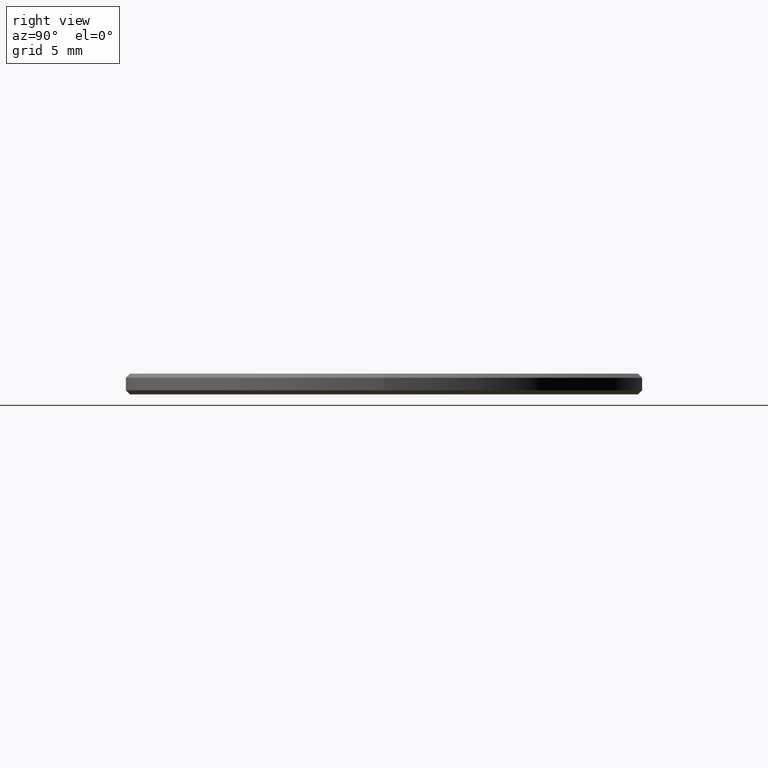
[diagram: clean part render]
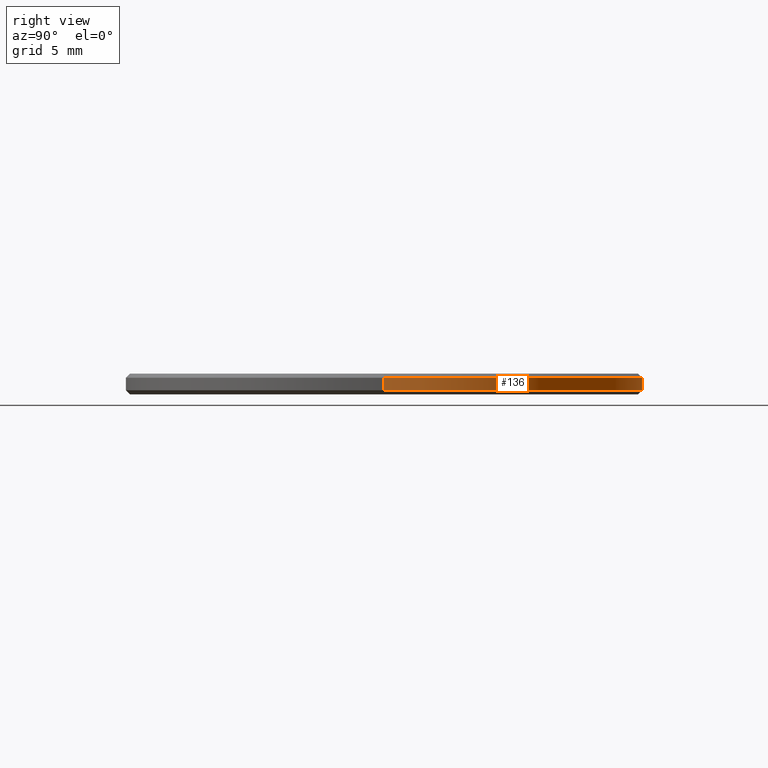
[diagram: same view with one face highlighted and labeled with its STEP entity id]
A machine part, right view. The second image highlights one B-rep face of the part: STEP entity #136.
In plain terms, the highlighted cylindrical surface (partial cylindrical patch) has radius 12.5 mm, axis along (-0, -0, -1).
Its self-contained STEP definition (entity closure, byte-faithful):
#4 = VERTEX_POINT ( 'NONE', #64 ) ;
#5 = VERTEX_POINT ( 'NONE', #122 ) ;
#11 = VERTEX_POINT ( 'NONE', #81 ) ;
#18 = DIRECTION ( 'NONE',  ( -0.000000000000000000, -0.000000000000000000, -1.000000000000000000 ) ) ;
#19 = DIRECTION ( 'NONE',  ( 0.000000000000000000, 0.000000000000000000, -1.000000000000000000 ) ) ;
#22 = CIRCLE ( 'NONE', #104, 12.50000000000000000 ) ;
#35 = LINE ( 'NONE', #182, #192 ) ;
#41 = ORIENTED_EDGE ( 'NONE', *, *, #204, .T. ) ;
#54 = DIRECTION ( 'NONE',  ( -0.000000000000000000, -0.000000000000000000, -1.000000000000000000 ) ) ;
#64 = CARTESIAN_POINT ( 'NONE',  ( 12.50000000000000000, 1.530808498934191521E-15, 0.1999999999999987899 ) ) ;
#81 = CARTESIAN_POINT ( 'NONE',  ( 12.50000000000000000, 1.530808498934191521E-15, 0.8000000000000029310 ) ) ;
#82 = DIRECTION ( 'NONE',  ( -0.000000000000000000, -0.000000000000000000, -1.000000000000000000 ) ) ;
#90 = LINE ( 'NONE', #239, #130 ) ;
#100 = VERTEX_POINT ( 'NONE', #234 ) ;
#104 = AXIS2_PLACEMENT_3D ( 'NONE', #237, #19, #203 ) ;
#109 = CYLINDRICAL_SURFACE ( 'NONE', #189, 12.50000000000000000 ) ;
#115 = ORIENTED_EDGE ( 'NONE', *, *, #221, .T. ) ;
#120 = EDGE_LOOP ( 'NONE', ( #134, #115, #41, #168 ) ) ;
#122 = CARTESIAN_POINT ( 'NONE',  ( -12.50000000000000000, 0.000000000000000000, 0.1999999999999987899 ) ) ;
#127 = CARTESIAN_POINT ( 'NONE',  ( 0.000000000000000000, 0.000000000000000000, 0.1999999999999987899 ) ) ;
#130 = VECTOR ( 'NONE', #54, 1000.000000000000000 ) ;
#134 = ORIENTED_EDGE ( 'NONE', *, *, #175, .T. ) ;
#135 = AXIS2_PLACEMENT_3D ( 'NONE', #127, #222, #201 ) ;
#136 = ADVANCED_FACE ( 'NONE', ( #160 ), #109, .T. ) ;
#160 = FACE_OUTER_BOUND ( 'NONE', #120, .T. ) ;
#168 = ORIENTED_EDGE ( 'NONE', *, *, #210, .F. ) ;
#175 = EDGE_CURVE ( 'NONE', #100, #11, #22, .T. ) ;
#182 = CARTESIAN_POINT ( 'NONE',  ( -12.50000000000000000, 0.000000000000000000, 1.000000000000000000 ) ) ;
#189 = AXIS2_PLACEMENT_3D ( 'NONE', #216, #82, #233 ) ;
#192 = VECTOR ( 'NONE', #18, 1000.000000000000000 ) ;
#201 = DIRECTION ( 'NONE',  ( 1.000000000000000000, 0.000000000000000000, 0.000000000000000000 ) ) ;
#203 = DIRECTION ( 'NONE',  ( 1.000000000000000000, 0.000000000000000000, 0.000000000000000000 ) ) ;
#204 = EDGE_CURVE ( 'NONE', #4, #5, #240, .T. ) ;
#210 = EDGE_CURVE ( 'NONE', #100, #5, #35, .T. ) ;
#216 = CARTESIAN_POINT ( 'NONE',  ( 0.000000000000000000, 0.000000000000000000, 1.000000000000000000 ) ) ;
#221 = EDGE_CURVE ( 'NONE', #11, #4, #90, .T. ) ;
#222 = DIRECTION ( 'NONE',  ( -0.000000000000000000, -0.000000000000000000, 1.000000000000000000 ) ) ;
#233 = DIRECTION ( 'NONE',  ( -1.000000000000000000, 0.000000000000000000, 0.000000000000000000 ) ) ;
#234 = CARTESIAN_POINT ( 'NONE',  ( -12.50000000000000000, 0.000000000000000000, 0.8000000000000029310 ) ) ;
#237 = CARTESIAN_POINT ( 'NONE',  ( 0.000000000000000000, 0.000000000000000000, 0.8000000000000029310 ) ) ;
#239 = CARTESIAN_POINT ( 'NONE',  ( 12.50000000000000000, 1.530808498934191521E-15, 1.000000000000000000 ) ) ;
#240 = CIRCLE ( 'NONE', #135, 12.50000000000000000 ) ;